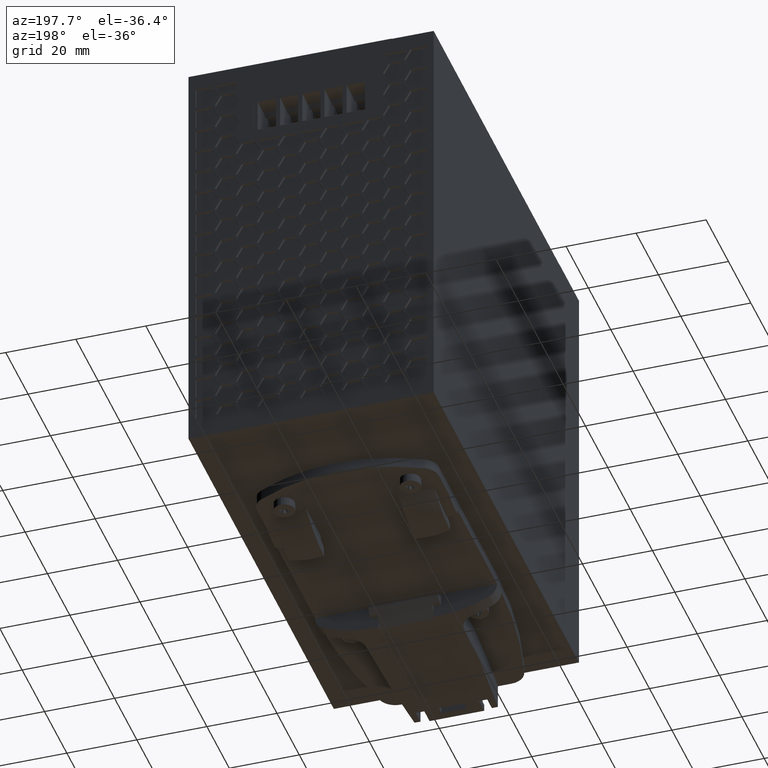
[diagram: clean part render]
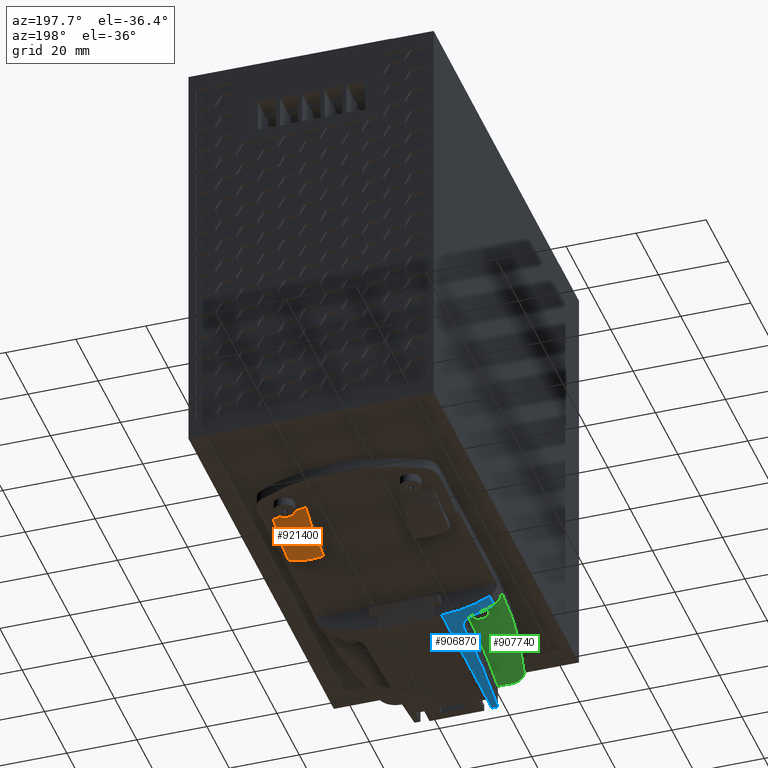
[diagram: same view with three faces highlighted in distinct colors, each labeled with its STEP entity id]
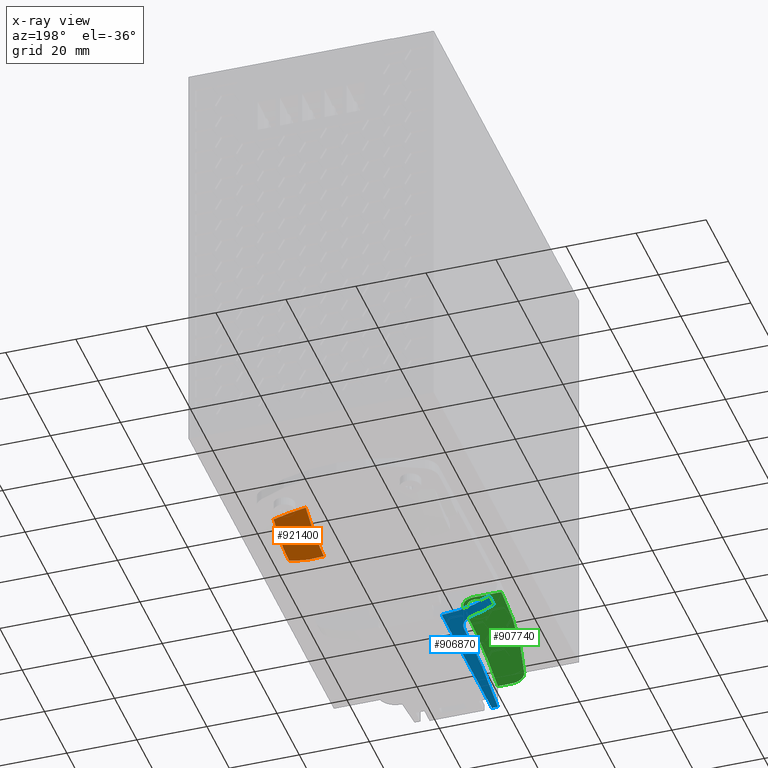
[diagram: x-ray of the same camera — body ghosted, the three highlighted faces saturated]
A machine part, auxiliary view with three faces highlighted in distinct colors.
The next image is the same camera in x-ray (body ghosted, the three faces saturated) — at least one of them is partly hidden behind the body in this view.
Their STEP definitions:

[orange] entity #921400 — the highlighted face is a freeform B-spline surface patch.
#853250=CARTESIAN_POINT('',(40.775,-2.90000000000834,41.3012793438114));
#853260=DIRECTION('',(-0.,-1.,-0.));
#853270=DIRECTION('',(-1.,0.,0.));
#853280=AXIS2_PLACEMENT_3D('',#853250,#853260,#853270);
#853290=PLANE('',#853280);
#854410=CARTESIAN_POINT('',(48.,-2.90000000000833,35.0890003545074));
#854420=VERTEX_POINT('',#854410);
#854450=CARTESIAN_POINT('',(77.1253755992074,-0.0241589224175964,
72.1587178152712));
#854460=CARTESIAN_POINT('',(70.664335661752,-2.44680798529034,
72.1423752645615));
#854470=CARTESIAN_POINT('',(64.2032957242966,-4.86945704816309,
72.1260327138517));
#854480=CARTESIAN_POINT('',(57.116849966181,-7.52660997419168,
72.1081082620181));
#854490=CARTESIAN_POINT('',(55.4817624491728,-8.01054048713559,
72.1026745609463));
#854500=CARTESIAN_POINT('',(53.0048222348098,-8.47560821841205,
72.0958242037655));
#854510=CARTESIAN_POINT('',(50.531224145998,-8.77872838090007,
72.0896174033807));
#854520=CARTESIAN_POINT('',(48.8969625614281,-8.93745837376605,
72.0836407750356));
#854530=CARTESIAN_POINT('',(41.6059163517444,-9.66752494661325,
72.0452335305841));
#854540=CARTESIAN_POINT('',(34.6462783539561,-10.3644069735786,
72.0085720542763));
#854550=CARTESIAN_POINT('',(27.6866403561679,-11.061289000544,
71.9719105779686));
#854560=CARTESIAN_POINT('',(77.5276185271797,-1.24850639758709,
63.6743777458501));
#854570=CARTESIAN_POINT('',(70.8648921265509,-3.25933271310826,
64.0517662746745));
#854580=CARTESIAN_POINT('',(64.202165725922,-5.27015902862943,
64.429154803499));
#854590=CARTESIAN_POINT('',(57.1170084165071,-7.40847597438215,
64.83047056115));
#854600=CARTESIAN_POINT('',(55.4835227722201,-7.80818977591963,
64.9197530436208));
#854610=CARTESIAN_POINT('',(53.0096291173331,-8.20601429825965,
65.0455605995791));
#854620=CARTESIAN_POINT('',(50.536674531595,-8.4635011099262,
65.1590996413321));
#854630=CARTESIAN_POINT('',(48.8996883805471,-8.58405179567897,
65.2236453799651));
#854640=CARTESIAN_POINT('',(41.5864955266555,-9.08909086257061,
65.4816174814066));
#854650=CARTESIAN_POINT('',(34.616242083493,-9.57044700417158,
65.7274924315463));
#854660=CARTESIAN_POINT('',(27.6459886403305,-10.0518031457725,
65.973367381686));
#854670=CARTESIAN_POINT('',(77.7891256204954,-2.56441545349597,
55.1583081392259));
#854680=CARTESIAN_POINT('',(70.9950806740214,-4.11763823129587,
55.9452925161861));
#854690=CARTESIAN_POINT('',(64.2010357275474,-5.67086100909577,
56.7322768931462));
#854700=CARTESIAN_POINT('',(57.1171668668331,-7.29034197457263,
57.5528328602818));
#854710=CARTESIAN_POINT('',(55.4852830952674,-7.60583906470366,
57.7368315262953));
#854720=CARTESIAN_POINT('',(53.0144359998564,-7.93642037810725,
57.9952969953928));
#854730=CARTESIAN_POINT('',(50.542124917192,-8.14827383895233,
58.2285818792835));
#854740=CARTESIAN_POINT('',(48.9024141996662,-8.23064521759189,
58.3636499848947));
#854750=CARTESIAN_POINT('',(41.5670747015666,-8.51065677852796,
58.9180014322293));
#854760=CARTESIAN_POINT('',(34.6125468289466,-8.77613163564808,
59.4435739149636));
#854770=CARTESIAN_POINT('',(27.6580189563267,-9.04160649276821,
59.969146397698));
#854780=CARTESIAN_POINT('',(78.1696514755378,-3.79792069590483,
51.2204589313347));
#854790=CARTESIAN_POINT('',(71.1848305891203,-4.92113887413827,
51.1338560758106));
#854800=CARTESIAN_POINT('',(64.2000097027028,-6.04435705237171,
51.0472532202865));
#854810=CARTESIAN_POINT('',(57.1173104197,-7.18331490325943,
50.9594367976895));
#854820=CARTESIAN_POINT('',(55.4869488614582,-7.41435774885076,
50.9397451432499));
#854830=CARTESIAN_POINT('',(53.0192653473317,-7.66556651152655,
50.9120840040626));
#854840=CARTESIAN_POINT('',(50.5478984844721,-7.81435510511426,
50.8871177071137));
#854850=CARTESIAN_POINT('',(48.9053907434349,-7.84473180886766,
50.8726626323847));
#854860=CARTESIAN_POINT('',(41.5459086675707,-7.8271157424021,
50.8133355870377));
#854870=CARTESIAN_POINT('',(34.5659257095143,-7.81040806617569,
50.7570678006358));
#854880=CARTESIAN_POINT('',(27.5859427514579,-7.79370038994928,
50.7008000142339));
#854890=CARTESIAN_POINT('',(78.1958360681451,-4.00604229597548,
50.5184521958206));
#854900=CARTESIAN_POINT('',(71.1965962826751,-5.04039651347857,
50.244723242599));
#854910=CARTESIAN_POINT('',(64.1973564972051,-6.07475073098166,
49.9709942893774));
#854920=CARTESIAN_POINT('',(57.1176881079733,-7.120990762953,
49.6941199034814));
#854930=CARTESIAN_POINT('',(55.4880457160437,-7.33505226837741,
49.6328273563541));
#854940=CARTESIAN_POINT('',(53.0210791414076,-7.56938777648838,
49.5489559635167));
#854950=CARTESIAN_POINT('',(50.5495998634878,-7.70554347067014,
49.4754536856325));
#854960=CARTESIAN_POINT('',(48.9061880714091,-7.72731701740634,
49.4343618501615));
#854970=CARTESIAN_POINT('',(41.5402357873154,-7.66458690798904,
49.2692298713624));
#854980=CARTESIAN_POINT('',(34.5657190482154,-7.60519035187486,
49.1128732041082));
#854990=CARTESIAN_POINT('',(27.5912023091153,-7.54579379576069,
48.9565165368539));
#855000=CARTESIAN_POINT('',(78.1971196207098,-4.20938947861462,
49.581272453886));
#855010=CARTESIAN_POINT('',(71.1924236158769,-5.10420908205171,
48.9980203710671));
#855020=CARTESIAN_POINT('',(64.1877276110439,-5.9990286854888,
48.4147682882482));
#855030=CARTESIAN_POINT('',(57.1190599232003,-6.90202039460803,
47.8261895478082));
#855040=CARTESIAN_POINT('',(55.491467403211,-7.08826144315788,
47.697888985884));
#855050=CARTESIAN_POINT('',(53.02580321421,-7.29328071540834,
47.5279698057012));
#855060=CARTESIAN_POINT('',(50.5534712121632,-7.40991942400524,
47.3847382201042));
#855070=CARTESIAN_POINT('',(48.9078803559888,-7.42311419751246,
47.3085340039519));
#855080=CARTESIAN_POINT('',(41.5281901564157,-7.32745258295249,
47.0118618754869));
#855090=CARTESIAN_POINT('',(34.5659796108065,-7.23720268306673,
46.7319729146323));
#855100=CARTESIAN_POINT('',(27.6037690651973,-7.14695278318096,
46.4520839537777));
#855110=CARTESIAN_POINT('',(78.14727380979,-4.31166005681364,
48.7241720626889));
#855120=CARTESIAN_POINT('',(71.1607007212876,-5.0578303122961,
47.8155644045694));
#855130=CARTESIAN_POINT('',(64.1741276327852,-5.80400056777857,
46.9069567464499));
#855140=CARTESIAN_POINT('',(57.1209978417221,-6.55727911957808,
45.9896933526958));
#855150=CARTESIAN_POINT('',(55.4961282366978,-6.71337018653708,
45.791664681765));
#855160=CARTESIAN_POINT('',(53.0319035358,-6.88582369350843,
45.5348475781017));
#855170=CARTESIAN_POINT('',(50.5582301065976,-6.98290130661178,
45.3239500891211));
#855180=CARTESIAN_POINT('',(48.9099006757897,-6.99142449751895,
45.215640339758));
#855190=CARTESIAN_POINT('',(41.5138068117814,-6.89275794075477,
44.8039510040365));
#855200=CARTESIAN_POINT('',(34.5665232623987,-6.80007867528227,
44.4172438310201));
#855210=CARTESIAN_POINT('',(27.619239713016,-6.70739940980977,
44.0305366580037));
#855220=CARTESIAN_POINT('',(78.0440000129732,-4.31063747550679,
47.9115516637001));
#855230=CARTESIAN_POINT('',(71.1010985749711,-4.90008259340228,
46.6751283753687));
#855240=CARTESIAN_POINT('',(64.1581971369691,-5.48952771129777,
45.4387050870373));
#855250=CARTESIAN_POINT('',(57.1232680192136,-6.08678588358072,
44.1858930932873));
#855260=CARTESIAN_POINT('',(55.5015016347256,-6.21082713726207,
43.9171433231477));
#855270=CARTESIAN_POINT('',(53.03876259293,-6.3484053935083,
43.5734112051015));
#855280=CARTESIAN_POINT('',(50.5634489952508,-6.4261743734329,
43.2960038942695));
#855290=CARTESIAN_POINT('',(48.9120816722819,-6.43311954809042,
43.1569010522286));
#855300=CARTESIAN_POINT('',(41.4982779088274,-6.35430492300394,
42.6368091027382));
#855310=CARTESIAN_POINT('',(34.5678390048054,-6.28062885045968,
42.1506260858386));
#855320=CARTESIAN_POINT('',(27.6374001007833,-6.20695277791541,
41.6644430689391));
#855330=CARTESIAN_POINT('',(77.8902779541947,-4.19590071246779,
47.1103177431818));
#855340=CARTESIAN_POINT('',(71.0159086210256,-4.62461350843402,
45.5561849567794));
#855350=CARTESIAN_POINT('',(64.1415392878565,-5.05332630440024,
44.002052170377));
#855360=CARTESIAN_POINT('',(57.1256419464317,-5.49086534539146,
42.4159232389954));
#855370=CARTESIAN_POINT('',(55.507071692385,-5.58179742062032,
42.0770270095323));
#855380=CARTESIAN_POINT('',(53.04577249166,-5.68331420490824,
41.6471466100013));
#855390=CARTESIAN_POINT('',(50.5687045090808,-5.74209663392696,
41.3035821765645));
#855400=CARTESIAN_POINT('',(48.9142568856916,-5.74934888144503,
41.1334457825351));
#855410=CARTESIAN_POINT('',(41.482789162899,-5.70391667955919,
40.5023934347984));
#855420=CARTESIAN_POINT('',(34.5714646411442,-5.66166436781089,
39.9155096955276));
#855430=CARTESIAN_POINT('',(27.6601401193894,-5.61941205606258,
39.3286259562567));
#855440=CARTESIAN_POINT('',(77.6944328974397,-3.94963908265929,
46.2917333179676));
#855450=CARTESIAN_POINT('',(70.9100763684923,-4.22030323552199,
44.4408317905988));
#855460=CARTESIAN_POINT('',(64.1257198395449,-4.4909673883847,
42.5899302632299));
#855470=CARTESIAN_POINT('',(57.1278964491967,-4.77014787245122,
40.6807909150561));
#855480=CARTESIAN_POINT('',(55.5123331817069,-4.82816264350902,
40.273731021188));
#855490=CARTESIAN_POINT('',(53.05233495746,-4.89373821890814,
39.7592036742016));
#855500=CARTESIAN_POINT('',(50.5735774616433,-4.93369884585104,
39.3491353738253));
#855510=CARTESIAN_POINT('',(48.9162607550087,-4.94153992488759,
39.1463135750572));
#855520=CARTESIAN_POINT('',(41.4685198488878,-4.93143756568219,
38.3933066299252));
#855530=CARTESIAN_POINT('',(34.5795051498765,-4.92209308096689,
37.696789930585));
#855540=CARTESIAN_POINT('',(27.6904904508651,-4.91274859625159,
37.0002732312449));
#855550=CARTESIAN_POINT('',(77.4693838324478,-3.54778055712907,
45.4329560162867));
#855560=CARTESIAN_POINT('',(70.7908254825482,-3.67182863586377,
43.3145603817995));
#855570=CARTESIAN_POINT('',(64.1122671326485,-3.79587671459848,
41.1961647473123));
#855580=CARTESIAN_POINT('',(57.1298136888351,-3.92556936519463,
38.9813755490406));
#855590=CARTESIAN_POINT('',(55.5167915526307,-3.95252071180386,
38.509383451989));
#855600=CARTESIAN_POINT('',(53.0578613363308,-3.98376503845253,
37.9123958524483));
#855610=CARTESIAN_POINT('',(50.5776528499558,-4.00468432189791,
37.4348814220592));
#855620=CARTESIAN_POINT('',(48.9179286183689,-4.01139780775344,
37.1964524716643));
#855630=CARTESIAN_POINT('',(41.4566427987235,-4.02473294505085,
36.302796249533));
#855640=CARTESIAN_POINT('',(34.5944271354381,-4.03699739788731,
35.4808921068241));
#855650=CARTESIAN_POINT('',(27.7322114721528,-4.04926185072376,
34.6589879641153));
#855660=CARTESIAN_POINT('',(77.3136354720964,-3.15753869570322,
44.8258220783123));
#855670=CARTESIAN_POINT('',(70.7097529595056,-3.19786047207976,
42.5507634475484));
#855680=CARTESIAN_POINT('',(64.1058704469148,-3.2381822484563,
40.2757048167846));
#855690=CARTESIAN_POINT('',(57.1307253368297,-3.28077086822452,
37.8727450346755));
#855700=CARTESIAN_POINT('',(55.5189058040953,-3.28963104535092,
37.3603452521709));
#855710=CARTESIAN_POINT('',(53.0604688394332,-3.30017646620769,
36.7102660582208));
#855720=CARTESIAN_POINT('',(50.5795641843839,-3.30784766765623,
36.1868316590526));
#855730=CARTESIAN_POINT('',(48.9187073473575,-3.31106978229951,
35.9219645235535));
#855740=CARTESIAN_POINT('',(41.4510972061684,-3.32137070032301,
34.9174360069633));
#855750=CARTESIAN_POINT('',(34.6104624301834,-3.33080676041771,
33.9972470075197));
#855760=CARTESIAN_POINT('',(27.7698276541984,-3.34024282051241,
33.0770580080761));
#855770=CARTESIAN_POINT('',(76.4083338205937,-0.736202104567354,
41.4542382954953));
#855780=CARTESIAN_POINT('',(70.2452213123736,-0.424581733889091,
38.5085634530792));
#855790=CARTESIAN_POINT('',(64.0821088041536,-0.112961363210827,
35.5628886106631));
#855800=CARTESIAN_POINT('',(57.1341118339912,0.23834447266767,
32.2420763014778));
#855810=CARTESIAN_POINT('',(55.5267514968996,0.311429839580776,
31.5311225807569));
#855820=CARTESIAN_POINT('',(53.0701214650967,0.398400269451116,
30.6141907473977));
#855830=CARTESIAN_POINT('',(50.5866161838789,0.461631629509813,
29.8517825143394));
#855840=CARTESIAN_POINT('',(48.9215725947422,0.488150789407816,
29.4424991364718));
#855850=CARTESIAN_POINT('',(41.4306924170975,0.57277535608233,
27.8139112168226));
#855860=CARTESIAN_POINT('',(34.743598629147,0.648319537900372,
26.3600740304905));
#855870=CARTESIAN_POINT('',(28.0565048411964,0.723863719718414,
24.9062368441584));
#855880=CARTESIAN_POINT('',(76.7062872300324,4.16935056400055,
34.6662801668324));
#855890=CARTESIAN_POINT('',(70.38124465141,4.14247582402699,
31.8927173322943));
#855900=CARTESIAN_POINT('',(64.0562020727876,4.11560108405342,
29.1191544977562));
#855910=CARTESIAN_POINT('',(57.1378146877937,4.08620525632627,
26.0854069952791));
#855920=CARTESIAN_POINT('',(55.534955297764,4.07685720681804,
25.43583142128));
#855930=CARTESIAN_POINT('',(53.0796502731668,4.04953407233294,
24.596311919126));
#855940=CARTESIAN_POINT('',(50.5932455893868,4.00522332038507,
23.8963638103901));
#855950=CARTESIAN_POINT('',(48.9241921153071,3.96154595645529,
23.5187199465663));
#855960=CARTESIAN_POINT('',(41.4120041351111,3.73001877239524,
22.0121443375364));
#855970=CARTESIAN_POINT('',(34.7044861137435,3.52329168254961,
20.6669459646041));
#855980=CARTESIAN_POINT('',(27.9969680923758,3.31656459270398,
19.3217475916718));
#855990=CARTESIAN_POINT('',(76.9457883360215,9.11303885729295,
27.8250655245848));
#856000=CARTESIAN_POINT('',(70.4880418387216,8.72860119430532,
25.250242954717));
#856010=CARTESIAN_POINT('',(64.0302953414217,8.34416353131769,
22.6754203848492));
#856020=CARTESIAN_POINT('',(57.1415175415962,7.93406603998487,
19.9287376890804));
#856030=CARTESIAN_POINT('',(55.5431590986283,7.84228457405531,
19.3405402618031));
#856040=CARTESIAN_POINT('',(53.0891790812369,7.70066787521476,
18.5784330908543));
#856050=CARTESIAN_POINT('',(50.5998749948948,7.54881501126033,
17.9409451064408));
#856060=CARTESIAN_POINT('',(48.9268116358721,7.43494112350275,
17.5949407566607));
#856070=CARTESIAN_POINT('',(41.3933158531247,6.88726218870817,
16.2103774582502));
#856080=CARTESIAN_POINT('',(34.6850957402231,6.39958011497352,
14.9774896152314));
#856090=CARTESIAN_POINT('',(27.9768756273215,5.91189804123886,
13.7446017722126));
#856100=B_SPLINE_SURFACE_WITH_KNOTS('',3,3,((#854450,#854560,#854670,
#854780,#854890,#855000,#855110,#855220,#855330,#855440,#855550,#855660,
#855770,#855880,#855990),(#854460,#854570,#854680,#854790,#854900,
#855010,#855120,#855230,#855340,#855450,#855560,#855670,#855780,#855890,
#856000),(#854470,#854580,#854690,#854800,#854910,#855020,#855130,
#855240,#855350,#855460,#855570,#855680,#855790,#855900,#856010),(
#854480,#854590,#854700,#854810,#854920,#855030,#855140,#855250,#855360,
#855470,#855580,#855690,#855800,#855910,#856020),(#854490,#854600,
#854710,#854820,#854930,#855040,#855150,#855260,#855370,#855480,#855590,
#855700,#855810,#855920,#856030),(#854500,#854610,#854720,#854830,
#854940,#855050,#855160,#855270,#855380,#855490,#855600,#855710,#855820,
#855930,#856040),(#854510,#854620,#854730,#854840,#854950,#855060,
#855170,#855280,#855390,#855500,#855610,#855720,#855830,#855940,#856050)
,(#854520,#854630,#854740,#854850,#854960,#855070,#855180,#855290,
#855400,#855510,#855620,#855730,#855840,#855950,#856060),(#854530,
#854640,#854750,#854860,#854970,#855080,#855190,#855300,#855410,#855520,
#855630,#855740,#855850,#855960,#856070),(#854540,#854650,#854760,
#854870,#854980,#855090,#855200,#855310,#855420,#855530,#855640,#855750,
#855860,#855970,#856080),(#854550,#854660,#854770,#854880,#854990,
#855100,#855210,#855320,#855430,#855540,#855650,#855760,#855870,#855980,
#856090)),.UNSPECIFIED.,.F.,.F.,.F.,(4,2,1,1,1,2,4),(4,2,1,1,1,1,1,1,1,2
,4),(-1.88944656118273,0.00831619238758589,0.25,0.5,0.75,
0.990153097493994,2.94222789825215),(-1.16260988824048,
-7.67162766264694E-9,0.12442326814,0.2488465362801,0.3732698044201,
0.4976930725602,0.6221163407002,0.7465396088403,0.8709628769803,
0.995386222790939,2.14909557170856),.UNSPECIFIED.);
#856110=CARTESIAN_POINT('',(48.,-2.90000000000834,35.0890003545074));
#856120=CARTESIAN_POINT('',(48.8517527674043,-2.90000000000834,
35.2112415140407));
#856130=CARTESIAN_POINT('',(49.7000614963543,-2.90000000000833,
35.3518880738993));
#856140=CARTESIAN_POINT('',(50.5447742805632,-2.90000000000833,
35.5161732547488));
#856150=CARTESIAN_POINT('',(51.3890944700488,-2.90000000000833,
35.6803820812487));
#856160=CARTESIAN_POINT('',(52.2294337389637,-2.90000000000833,
35.866508237478));
#856170=CARTESIAN_POINT('',(53.0641269338766,-2.90000000000833,
36.0741730200846));
#856180=CARTESIAN_POINT('',(53.8988232812549,-2.90000000000833,
36.2818385869986));
#856190=CARTESIAN_POINT('',(54.7284075510733,-2.90000000000834,
36.5111752533473));
#856200=CARTESIAN_POINT('',(55.5512976913298,-2.90000000000834,
36.7615519458046));
#856210=CARTESIAN_POINT('',(56.3745144834575,-2.90000000000834,
37.012028027003));
#856220=CARTESIAN_POINT('',(57.1901476076442,-2.90000000000833,
37.2846987098254));
#856230=CARTESIAN_POINT('',(58.,-2.90000000000833,37.575340814434));
#856240=B_SPLINE_CURVE_WITH_KNOTS('',3,(#856110,#856120,#856130,#856140,
#856150,#856160,#856170,#856180,#856190,#856200,#856210,#856220,#856230)
,.UNSPECIFIED.,.F.,.F.,(4,3,3,3,4),(0.,2.58064236166617,5.16133759229413
,7.74203156768034,10.3226785169198),.UNSPECIFIED.);
#856250=SURFACE_CURVE('',#856240,(#853290,#856100),.CURVE_3D.);
#856260=CARTESIAN_POINT('',(58.,-2.90000000000833,37.575340814434));
#856270=VERTEX_POINT('',#856260);
#856280=EDGE_CURVE('',#854420,#856270,#856250,.T.);
#886450=CARTESIAN_POINT('',(58.,-2.90000000000834,21.8968498908008));
#886460=DIRECTION('',(-1.,0.,0.));
#886470=DIRECTION('',(0.,0.,1.));
#886480=AXIS2_PLACEMENT_3D('',#886450,#886460,#886470);
#886490=PLANE('',#886480);
#886500=CARTESIAN_POINT('',(58.,-2.9000000000083,37.575340814434));
#886510=CARTESIAN_POINT('',(58.,-3.22404313963493,38.0904706637892));
#886520=CARTESIAN_POINT('',(58.,-3.534084426434,38.6134912513692));
#886530=CARTESIAN_POINT('',(58.,-3.82591975197123,39.14765164171));
#886540=CARTESIAN_POINT('',(58.,-4.11751825441438,39.6813785632233));
#886550=CARTESIAN_POINT('',(58.,-4.39177270286829,40.2249986944068));
#886560=CARTESIAN_POINT('',(58.,-4.64702850284321,40.7771344792189));
#886570=CARTESIAN_POINT('',(58.,-5.15762829314508,41.8815968106172));
#886580=CARTESIAN_POINT('',(58.,-5.59219291491517,43.020884673348));
#886590=CARTESIAN_POINT('',(58.,-5.94339690212169,44.1860266406154));
#886600=CARTESIAN_POINT('',(58.,-6.2945758897707,45.3510856702321));
#886610=CARTESIAN_POINT('',(58.,-6.56201438456371,46.5408126490161));
#886620=CARTESIAN_POINT('',(58.,-6.74469223922665,47.7439116566008));
#886630=CARTESIAN_POINT('',(58.,-6.92735990714421,48.9469435752475));
#886640=CARTESIAN_POINT('',(58.,-7.02521823779406,50.1622223261922));
#886650=CARTESIAN_POINT('',(58.,-7.04349894822712,51.3788823513446));
#886660=B_SPLINE_CURVE_WITH_KNOTS('',3,(#886500,#886510,#886520,#886530,
#886540,#886550,#886560,#886570,#886580,#886590,#886600,#886610,#886620,
#886630,#886640,#886650),.UNSPECIFIED.,.F.,.F.,(4,3,3,3,3,4),(0.,
1.82497602623129,3.64999091552382,7.30005244746997,10.950123135396,
14.6001530451546),.UNSPECIFIED.);
#886670=SURFACE_CURVE('',#886660,(#886490,#856100),.CURVE_3D.);
#886680=CARTESIAN_POINT('',(58.0000000000104,-7.04349894822546,
51.3788823513478));
#886690=VERTEX_POINT('',#886680);
#886700=EDGE_CURVE('',#856270,#886690,#886670,.T.);
#920530=CARTESIAN_POINT('',(48.,-2.90000000000833,536.346849890801));
#920540=DIRECTION('',(-1.,0.,0.));
#920550=DIRECTION('',(0.,0.,1.));
#920560=AXIS2_PLACEMENT_3D('',#920530,#920540,#920550);
#920570=PLANE('',#920560);
#920650=CARTESIAN_POINT('',(47.9999999999841,-7.87067313816699,
51.3797583463967));
#920660=VERTEX_POINT('',#920650);
#920690=CARTESIAN_POINT('',(48.,-2.90000000000834,35.0890003545074));
#920700=CARTESIAN_POINT('',(48.,-3.26008026239819,35.7084796749233));
#920710=CARTESIAN_POINT('',(48.,-3.60544590254619,36.335703398766));
#920720=CARTESIAN_POINT('',(48.,-3.93192034320342,36.9736355309573));
#920730=CARTESIAN_POINT('',(48.,-4.25819803098728,37.6111832073862));
#920740=CARTESIAN_POINT('',(48.,-4.56654321493575,38.2582622333778));
#920750=CARTESIAN_POINT('',(48.,-4.8556601428362,38.9135766390644));
#920760=CARTESIAN_POINT('',(48.,-5.43396289179564,40.2243616041417));
#920770=CARTESIAN_POINT('',(48.,-5.93540520100835,41.5688497629844));
#920780=CARTESIAN_POINT('',(48.,-6.35435564650615,42.9390116937384));
#920790=CARTESIAN_POINT('',(48.,-6.77328734784705,44.3091123224207));
#920800=CARTESIAN_POINT('',(48.,-7.10949733973172,45.704159505921));
#920810=CARTESIAN_POINT('',(48.,-7.36186684069366,47.1145166834072));
#920820=CARTESIAN_POINT('',(48.,-7.61422863427166,48.5248307884769));
#920830=CARTESIAN_POINT('',(48.,-7.78269205975945,49.9497512296753));
#920840=CARTESIAN_POINT('',(48.,-7.87067313816703,51.3797583463975));
#920850=B_SPLINE_CURVE_WITH_KNOTS('',3,(#920690,#920700,#920710,#920720,
#920730,#920740,#920750,#920760,#920770,#920780,#920790,#920800,#920810,
#920820,#920830,#920840),.UNSPECIFIED.,.F.,.F.,(4,3,3,3,3,4),(0.,
2.14890927113325,4.29784847049062,8.59574526862519,12.8936466122272,
17.1915226162553),.UNSPECIFIED.);
#920860=SURFACE_CURVE('',#920850,(#920570,#856100),.CURVE_3D.);
#920870=EDGE_CURVE('',#854420,#920660,#920860,.T.);
#920990=CARTESIAN_POINT('',(52.99739573357,0.0999999999916668,
21.6500835190014));
#921000=DIRECTION('',(0.,1.,0.));
#921010=DIRECTION('',(0.,0.,1.));
#921020=AXIS2_PLACEMENT_3D('',#920990,#921000,#921010);
#921030=CYLINDRICAL_SURFACE('',#921020,30.14676648433);
#921050=CARTESIAN_POINT('',(48.,-7.87067313816714,51.3797583463994));
#921060=CARTESIAN_POINT('',(48.8295967338758,-7.87881695831124,
51.5192090199276));
#921070=CARTESIAN_POINT('',(49.6643278979271,-7.8679408941937,
51.6238226084132));
#921080=CARTESIAN_POINT('',(50.5021849042176,-7.83611416621098,
51.6934097725607));
#921090=CARTESIAN_POINT('',(51.3396843411133,-7.8043010208131,
51.7629672392301));
#921100=CARTESIAN_POINT('',(52.1802221882397,-7.75256681326818,
51.7974219123439));
#921110=CARTESIAN_POINT('',(53.0182287573066,-7.68176845382866,
51.7968428049652));
#921120=CARTESIAN_POINT('',(53.8562472193132,-7.610969089623,
51.7962636893679));
#921130=CARTESIAN_POINT('',(54.6933976496343,-7.5208554742215,
51.7606607836537));
#921140=CARTESIAN_POINT('',(55.5245816914605,-7.41354521276974,
51.6907369838474));
#921150=CARTESIAN_POINT('',(56.3559568154955,-7.30621028159293,
51.6207971091486));
#921160=CARTESIAN_POINT('',(57.181555690497,-7.18073208018799,
51.5166058099273));
#921170=CARTESIAN_POINT('',(58.,-7.04349894822719,51.3788823513495));
#921180=B_SPLINE_CURVE_WITH_KNOTS('',3,(#921050,#921060,#921070,#921080,
#921090,#921100,#921110,#921120,#921130,#921140,#921150,#921160,#921170)
,.UNSPECIFIED.,.F.,.F.,(4,3,3,3,4),(0.,2.52297631559767,5.04682906361543
,7.57064632369015,10.0937644695667),.UNSPECIFIED.);
#921190=SURFACE_CURVE('',#921180,(#921030,#856100),.CURVE_3D.);
#921200=EDGE_CURVE('',#920660,#886690,#921190,.T.);
#921340=ORIENTED_EDGE('',*,*,#886700,.T.);
#921350=ORIENTED_EDGE('',*,*,#856280,.T.);
#921360=ORIENTED_EDGE('',*,*,#920870,.F.);
#921370=ORIENTED_EDGE('',*,*,#921200,.F.);
#921380=EDGE_LOOP('',(#921370,#921360,#921350,#921340));
#921390=FACE_OUTER_BOUND('',#921380,.T.);
#921400=ADVANCED_FACE('',(#921390),#856100,.T.);

[blue] entity #906870 — the highlighted cylindrical surface (partial cylindrical patch) has radius 30 mm, axis along (0, -1, 0).
#852880=CARTESIAN_POINT('',(11.1846142819829,-6.63245468884783,
84.0968498924325));
#852890=VERTEX_POINT('',#852880);
#852920=CARTESIAN_POINT('',(24.8,20.0999999999917,84.0968498908014));
#852930=DIRECTION('',(0.,0.,1.));
#852940=DIRECTION('',(-1.,0.,0.));
#852950=AXIS2_PLACEMENT_3D('',#852920,#852930,#852940);
#852960=CIRCLE('',#852950,30.);
#852970=CARTESIAN_POINT('',(24.8,-9.90000000000832,84.0968498908014));
#852980=VERTEX_POINT('',#852970);
#852990=EDGE_CURVE('',#852890,#852980,#852960,.T.);
#885540=CARTESIAN_POINT('',(17.0197058845347,-8.8735573148576,
88.0968498908014));
#885550=VERTEX_POINT('',#885540);
#885580=CARTESIAN_POINT('',(24.8,20.0999999999917,88.0968498908014));
#885590=DIRECTION('',(0.,0.,1.));
#885600=DIRECTION('',(-1.,0.,0.));
#885610=AXIS2_PLACEMENT_3D('',#885580,#885590,#885600);
#885620=CIRCLE('',#885610,30.);
#885630=CARTESIAN_POINT('',(11.2437953661913,-6.66251482036654,
88.0968498892619));
#885640=VERTEX_POINT('',#885630);
#885650=EDGE_CURVE('',#885640,#885550,#885620,.T.);
#893300=CARTESIAN_POINT('',(24.8,-9.90000000000833,128.946849890801));
#893310=VERTEX_POINT('',#893300);
#893340=CARTESIAN_POINT('',(24.8,20.0999999999917,128.946849890801));
#893350=DIRECTION('',(0.,0.,1.));
#893360=DIRECTION('',(-1.,0.,0.));
#893370=AXIS2_PLACEMENT_3D('',#893340,#893350,#893360);
#893380=CIRCLE('',#893370,30.);
#893390=CARTESIAN_POINT('',(23.0832743476795,-9.85084060648655,
128.946849890801));
#893400=VERTEX_POINT('',#893390);
#893410=EDGE_CURVE('',#893400,#893310,#893380,.T.);
#905950=CARTESIAN_POINT('',(11.2437624466567,-6.66251940611407,
80.0979553580617));
#905960=CARTESIAN_POINT('',(11.1849331038888,-6.63278626931829,
82.086237102675));
#905970=CARTESIAN_POINT('',(11.1699769039595,-6.62496073955719,
84.0755936872118));
#905980=CARTESIAN_POINT('',(11.2282163773467,-6.65458405430839,
88.0757241335496));
#905990=CARTESIAN_POINT('',(11.3023204121856,-6.69249004179886,
90.0847180728239));
#906000=CARTESIAN_POINT('',(11.4211218192493,-6.75161760437697,
92.0912104796255));
#906010=B_SPLINE_CURVE_WITH_KNOTS('',3,(#905950,#905960,#905970,#905980,
#905990,#906000),.UNSPECIFIED.,.F.,.F.,(4,2,4),(63.4989577118432,
69.5427227212882,75.6504981247116),.UNSPECIFIED.);
#906020=EDGE_CURVE('',#852890,#885640,#906010,.T.);
#906160=CARTESIAN_POINT('',(24.8,20.0999999999917,84.0992150856014));
#906170=DIRECTION('',(0.,0.,1.));
#906180=DIRECTION('',(-1.,0.,0.));
#906190=AXIS2_PLACEMENT_3D('',#906160,#906170,#906180);
#906200=CYLINDRICAL_SURFACE('',#906190,30.);
#906210=ORIENTED_EDGE('',*,*,#852990,.T.);
#906220=ORIENTED_EDGE('',*,*,#906020,.F.);
#906230=ORIENTED_EDGE('',*,*,#885650,.F.);
#906240=CARTESIAN_POINT('',(17.0197058845347,-3.30000000000838,
92.0968498908017));
#906250=DIRECTION('',(0.,-1.,0.));
#906260=DIRECTION('',(-1.,0.,0.));
#906270=AXIS2_PLACEMENT_3D('',#906240,#906250,#906260);
#906280=CYLINDRICAL_SURFACE('',#906270,4.);
#906290=CARTESIAN_POINT('',(21.0195114984962,-9.6608451944916,
92.0574157619077));
#906300=CARTESIAN_POINT('',(21.0143235497669,-9.66018617488414,
91.5312018696638));
#906310=CARTESIAN_POINT('',(20.9030007579533,-9.64654338368817,
91.0037065668586));
#906320=CARTESIAN_POINT('',(20.6965219196723,-9.61803270145527,
90.5217232788257));
#906330=CARTESIAN_POINT('',(20.4895296934223,-9.58945113040216,
90.0385415899138));
#906340=CARTESIAN_POINT('',(20.1847783445706,-9.54528753584914,
89.5960355716404));
#906350=CARTESIAN_POINT('',(19.8114414519301,-9.48233059806094,
89.2322011301786));
#906360=CARTESIAN_POINT('',(19.4371166325587,-9.41920706317782,
88.8674039074396));
#906370=CARTESIAN_POINT('',(18.9901427565194,-9.33610949279972,
88.577927516252));
#906380=CARTESIAN_POINT('',(18.5121420403267,-9.23364693111755,
88.3856998910194));
#906390=CARTESIAN_POINT('',(18.034149624724,-9.1311861487208,
88.1934756038626));
#906400=CARTESIAN_POINT('',(17.5255888257736,-9.00940249355155,
88.0968498908017));
#906410=CARTESIAN_POINT('',(17.0197058845347,-8.8735573148576,
88.0968498908017));
#906420=B_SPLINE_CURVE_WITH_KNOTS('',3,(#906290,#906300,#906310,#906320,
#906330,#906340,#906350,#906360,#906370,#906380,#906390,#906400,#906410)
,.UNSPECIFIED.,.F.,.F.,(4,3,3,3,4),(0.,1.58029651084177,3.16059789253212
,4.74126521640907,6.3128013730028),.UNSPECIFIED.);
#906430=SURFACE_CURVE('',#906420,(#906280,#906200),.CURVE_3D.);
#906440=CARTESIAN_POINT('',(21.0195114984975,-9.66084519449259,
92.0574157620205));
#906450=VERTEX_POINT('',#906440);
#906460=EDGE_CURVE('',#906450,#885550,#906430,.T.);
#906470=ORIENTED_EDGE('',*,*,#906460,.T.);
#906480=CARTESIAN_POINT('',(422.5,-3.30000000000838,88.0992150856014));
#906490=DIRECTION('',(0.,-1.,0.));
#906500=DIRECTION('',(0.,0.,-1.));
#906510=AXIS2_PLACEMENT_3D('',#906480,#906490,#906500);
#906520=CYLINDRICAL_SURFACE('',#906510,401.5);
#906530=CARTESIAN_POINT('',(23.0832743476794,-9.85084060648654,
128.9468498908));
#906540=CARTESIAN_POINT('',(22.7699132186022,-9.83287933802683,
125.882739160286));
#906550=CARTESIAN_POINT('',(22.4918028594638,-9.81206420823602,
122.81489391417));
#906560=CARTESIAN_POINT('',(22.249047744667,-9.7913472863237,
119.744518350052));
#906570=CARTESIAN_POINT('',(22.0063003493692,-9.7706310231998,
116.674240422439));
#906580=CARTESIAN_POINT('',(21.7988682042265,-9.75001074472849,
113.600975239663));
#906590=CARTESIAN_POINT('',(21.6268256954602,-9.73171072589545,
110.525720007281));
#906600=CARTESIAN_POINT('',(21.4547825141196,-9.71341063552122,
107.450452752648));
#906610=CARTESIAN_POINT('',(21.3181396429237,-9.69743352314328,
104.373486257624));
#906620=CARTESIAN_POINT('',(21.2169081717923,-9.68525563011215,
101.295055824041));
#906630=CARTESIAN_POINT('',(21.115677124116,-9.6730777880216,
98.2166382676488));
#906640=CARTESIAN_POINT('',(21.0498753100682,-9.66470227717056,
95.1372186570226));
#906650=CARTESIAN_POINT('',(21.0195114984974,-9.66084519449178,
92.0574157620205));
#906660=B_SPLINE_CURVE_WITH_KNOTS('',3,(#906530,#906540,#906550,#906560,
#906570,#906580,#906590,#906600,#906610,#906620,#906630,#906640,#906650)
,.UNSPECIFIED.,.F.,.F.,(4,3,3,3,4),(0.,9.24046284348139,18.480632332235,
27.7207160936638,36.960703930306),.UNSPECIFIED.);
#906670=SURFACE_CURVE('',#906660,(#906200,#906520),.CURVE_3D.);
#906680=EDGE_CURVE('',#893400,#906450,#906670,.T.);
#906690=ORIENTED_EDGE('',*,*,#906680,.T.);
#906700=ORIENTED_EDGE('',*,*,#893410,.F.);
#906710=CARTESIAN_POINT('',(24.8,-9.90000000000833,84.0992150856014));
#906720=DIRECTION('',(0.,0.,1.));
#906730=VECTOR('',#906720,1.);
#906740=LINE('',#906710,#906730);
#906750=CARTESIAN_POINT('',(24.8,-9.90000000000832,124.759419167234));
#906760=VERTEX_POINT('',#906750);
#906770=EDGE_CURVE('',#906760,#893310,#906740,.T.);
#906780=ORIENTED_EDGE('',*,*,#906770,.T.);
#906790=CARTESIAN_POINT('',(24.8,-9.90000000000832,84.0992150856014));
#906800=DIRECTION('',(0.,0.,1.));
#906810=VECTOR('',#906800,1.);
#906820=LINE('',#906790,#906810);
#906830=EDGE_CURVE('',#852980,#906760,#906820,.T.);
#906840=ORIENTED_EDGE('',*,*,#906830,.T.);
#906850=EDGE_LOOP('',(#906840,#906780,#906700,#906690,#906470,#906230,
#906220,#906210));
#906860=FACE_OUTER_BOUND('',#906850,.T.);
#906870=ADVANCED_FACE('',(#906860),#906200,.T.);

[green] entity #907740 — the highlighted planar face has unit normal (0, 0, 1).
#884970=CARTESIAN_POINT('',(14.3782939988653,-2.90000000000835,
125.232333761769));
#884980=VERTEX_POINT('',#884970);
#885010=CARTESIAN_POINT('',(169.,-2.90000000000835,84.0968498908014));
#885020=DIRECTION('',(0.,-1.,0.));
#885030=DIRECTION('',(0.,0.,1.));
#885040=AXIS2_PLACEMENT_3D('',#885010,#885020,#885030);
#885050=CIRCLE('',#885040,160.);
#885060=CARTESIAN_POINT('',(9.05000781494235,-2.90000000000835,
88.0968498908014));
#885070=VERTEX_POINT('',#885060);
#885080=EDGE_CURVE('',#884980,#885070,#885050,.T.);
#885420=CARTESIAN_POINT('',(-1.,-2.90000000000835,88.0968498908014));
#885430=DIRECTION('',(1.,0.,0.));
#885440=VECTOR('',#885430,1.);
#885450=LINE('',#885420,#885440);
#885460=CARTESIAN_POINT('',(17.0197058845347,-2.90000000000835,
88.0968498908017));
#885470=VERTEX_POINT('',#885460);
#885480=EDGE_CURVE('',#885070,#885470,#885450,.T.);
#893470=CARTESIAN_POINT('',(23.0832743476795,-2.90000000000835,
128.946849890801));
#893480=VERTEX_POINT('',#893470);
#893510=CARTESIAN_POINT('',(-1.,-2.90000000000835,128.946849890801));
#893520=DIRECTION('',(-1.,0.,0.));
#893530=VECTOR('',#893520,1.);
#893540=LINE('',#893510,#893530);
#893550=CARTESIAN_POINT('',(19.2102223114007,-2.90000000000835,
128.946849890801));
#893560=VERTEX_POINT('',#893550);
#893570=EDGE_CURVE('',#893480,#893560,#893540,.T.);
#907260=CARTESIAN_POINT('',(28.276364256605,-2.90000000000835,
68.0439269377014));
#907270=DIRECTION('',(0.,1.,0.));
#907280=DIRECTION('',(-0.707106781186548,0.,-0.707106781186548));
#907290=AXIS2_PLACEMENT_3D('',#907260,#907270,#907280);
#907300=PLANE('',#907290);
#907310=CARTESIAN_POINT('',(17.,-2.90000000000835,92.0968498908015));
#907320=DIRECTION('',(0.,-1.,0.));
#907330=DIRECTION('',(0.,0.,1.));
#907340=AXIS2_PLACEMENT_3D('',#907310,#907320,#907330);
#907350=CIRCLE('',#907340,3.);
#907360=CARTESIAN_POINT('',(17.,-2.90000000000835,95.0968498908015));
#907370=VERTEX_POINT('',#907360);
#907380=CARTESIAN_POINT('',(17.,-2.90000000000835,89.0968498908015));
#907390=VERTEX_POINT('',#907380);
#907400=EDGE_CURVE('',#907370,#907390,#907350,.T.);
#907410=ORIENTED_EDGE('',*,*,#907400,.F.);
#907420=EDGE_CURVE('',#907390,#907370,#907350,.T.);
#907430=ORIENTED_EDGE('',*,*,#907420,.F.);
#907440=EDGE_LOOP('',(#907430,#907410));
#907450=FACE_BOUND('',#907440,.T.);
#907460=ORIENTED_EDGE('',*,*,#885080,.T.);
#907470=CARTESIAN_POINT('',(19.2102223114007,-2.90000000000835,
123.946849890801));
#907480=DIRECTION('',(0.,-1.,0.));
#907490=DIRECTION('',(-1.,0.,0.));
#907500=AXIS2_PLACEMENT_3D('',#907470,#907480,#907490);
#907510=CIRCLE('',#907500,5.);
#907520=EDGE_CURVE('',#893560,#884980,#907510,.T.);
#907530=ORIENTED_EDGE('',*,*,#907520,.T.);
#907540=ORIENTED_EDGE('',*,*,#893570,.T.);
#907550=CARTESIAN_POINT('',(422.5,-2.90000000000835,88.0992150856014));
#907560=DIRECTION('',(0.,-1.,0.));
#907570=DIRECTION('',(0.,0.,-1.));
#907580=AXIS2_PLACEMENT_3D('',#907550,#907560,#907570);
#907590=CIRCLE('',#907580,401.5);
#907600=CARTESIAN_POINT('',(21.0195114984974,-2.90000000000835,
92.0574157620205));
#907610=VERTEX_POINT('',#907600);
#907620=EDGE_CURVE('',#893480,#907610,#907590,.T.);
#907630=ORIENTED_EDGE('',*,*,#907620,.F.);
#907640=CARTESIAN_POINT('',(17.0197058845347,-2.90000000000835,
92.0968498908017));
#907650=DIRECTION('',(0.,-1.,0.));
#907660=DIRECTION('',(-1.,0.,0.));
#907670=AXIS2_PLACEMENT_3D('',#907640,#907650,#907660);
#907680=CIRCLE('',#907670,4.);
#907690=EDGE_CURVE('',#885470,#907610,#907680,.T.);
#907700=ORIENTED_EDGE('',*,*,#907690,.T.);
#907710=ORIENTED_EDGE('',*,*,#885480,.T.);
#907720=EDGE_LOOP('',(#907710,#907700,#907630,#907540,#907530,#907460));
#907730=FACE_OUTER_BOUND('',#907720,.T.);
#907740=ADVANCED_FACE('',(#907450,#907730),#907300,.F.);